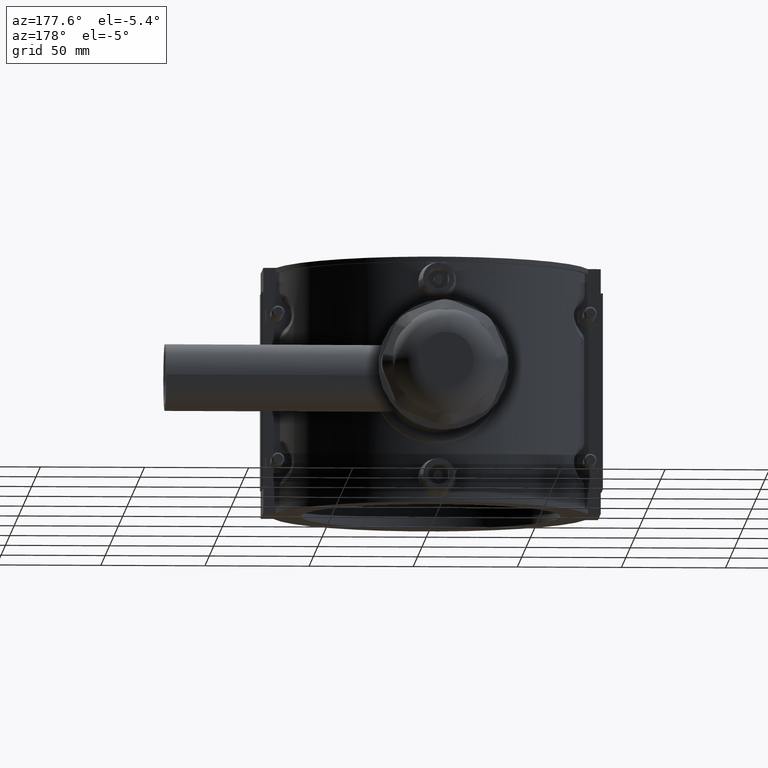
[diagram: clean part render]
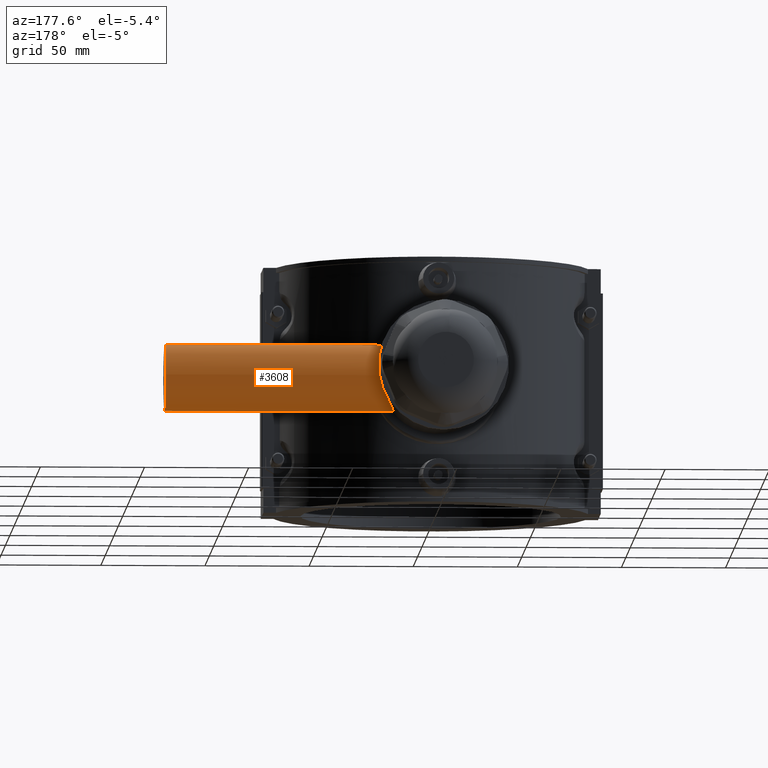
[diagram: same view with one face highlighted and labeled with its STEP entity id]
A machine part, auxiliary view. The second image highlights one B-rep face of the part: STEP entity #3608.
In plain terms, the highlighted cylindrical surface (bore or boss wall) has radius 16 mm, axis along (1, 0, 0).
Its self-contained STEP definition (entity closure, byte-faithful):
#784=CIRCLE('',#3837,16.);
#908=FACE_BOUND('',#1187,.T.);
#959=FACE_OUTER_BOUND('',#1186,.T.);
#1186=EDGE_LOOP('',(#2464));
#1187=EDGE_LOOP('',(#2465,#2466,#2467,#2468,#2469,#2470,#2471,#2472));
#1457=B_SPLINE_CURVE_WITH_KNOTS('',3,(#5241,#5242,#5243,#5244),
 .UNSPECIFIED.,.F.,.F.,(4,4),(1.59478542856925,2.06958599794035),
 .UNSPECIFIED.);
#1458=B_SPLINE_CURVE_WITH_KNOTS('',3,(#5246,#5247,#5248,#5249,#5250,#5251,
#5252,#5253,#5254,#5255),.UNSPECIFIED.,.F.,.F.,(4,2,2,2,4),(-0.207748612553213,
-0.16338054128881,-0.117160539926125,-0.0348976859957164,0.),
 .UNSPECIFIED.);
#1459=B_SPLINE_CURVE_WITH_KNOTS('',3,(#5257,#5258,#5259,#5260),
 .UNSPECIFIED.,.F.,.F.,(4,4),(8.91477351557231,9.20366583408459),
 .UNSPECIFIED.);
#1460=B_SPLINE_CURVE_WITH_KNOTS('',3,(#5262,#5263,#5264,#5265,#5266,#5267,
#5268,#5269,#5270,#5271,#5272,#5273,#5274,#5275,#5276,#5277,#5278,#5279,
#5280,#5281,#5282,#5283,#5284,#5285,#5286,#5287),.UNSPECIFIED.,.F.,.F.,
(4,2,2,2,2,2,2,2,2,2,2,2,4),(1.72278574496395,2.19073809176171,2.55586110705532,
2.92098412234894,3.36973123684705,3.5941047940961,3.81847835134516,4.04285190859421,
4.26722546584327,4.71597258034138,5.08109559563499,5.44621861092861,5.91417095772637),
 .UNSPECIFIED.);
#1461=B_SPLINE_CURVE_WITH_KNOTS('',3,(#5289,#5290,#5291,#5292),
 .UNSPECIFIED.,.F.,.F.,(4,4),(5.57363571386298,5.86252803240021),
 .UNSPECIFIED.);
#1462=B_SPLINE_CURVE_WITH_KNOTS('',3,(#5294,#5295,#5296,#5297,#5298,#5299,
#5300,#5301),.UNSPECIFIED.,.F.,.F.,(4,2,2,4),(-0.207324756175232,-0.137684046769073,
-0.0673685893567476,0.),.UNSPECIFIED.);
#1463=B_SPLINE_CURVE_WITH_KNOTS('',3,(#5303,#5304,#5305,#5306),
 .UNSPECIFIED.,.F.,.F.,(4,4),(1.01258753264947,1.48738810199706),
 .UNSPECIFIED.);
#1464=B_SPLINE_CURVE_WITH_KNOTS('',3,(#5307,#5308,#5309,#5310,#5311,#5312,
#5313,#5314,#5315,#5316,#5317,#5318,#5319,#5320,#5321,#5322,#5323,#5324,
#5325,#5326,#5327,#5328,#5329,#5330,#5331,#5332,#5333,#5334,#5335,#5336,
#5337,#5338,#5339,#5340,#5341,#5342,#5343,#5344,#5345),.UNSPECIFIED.,.F.,
 .F.,(4,2,2,2,2,2,2,2,2,2,2,2,2,2,2,2,3,2,4),(4.62653846409073,4.66368827455382,
4.97569535065282,5.28770242675181,5.59970950285081,6.22372365504879,6.5336784977814,
6.84363334051401,7.15358818324662,7.46354302597923,7.77349786871184,8.08345271144445,
8.39340755417705,8.70336239690966,9.32737654910765,9.63938362520664,9.95139070130564,
10.2633977774046,10.3005475878677),.UNSPECIFIED.);
#1573=VERTEX_POINT('',#5237);
#1574=VERTEX_POINT('',#5239);
#1575=VERTEX_POINT('',#5240);
#1576=VERTEX_POINT('',#5245);
#1577=VERTEX_POINT('',#5256);
#1578=VERTEX_POINT('',#5261);
#1579=VERTEX_POINT('',#5288);
#1580=VERTEX_POINT('',#5293);
#1581=VERTEX_POINT('',#5302);
#1926=EDGE_CURVE('',#1573,#1573,#784,.T.);
#1927=EDGE_CURVE('',#1574,#1575,#1457,.T.);
#1928=EDGE_CURVE('',#1576,#1574,#1458,.T.);
#1929=EDGE_CURVE('',#1577,#1576,#1459,.T.);
#1930=EDGE_CURVE('',#1578,#1577,#1460,.T.);
#1931=EDGE_CURVE('',#1579,#1578,#1461,.T.);
#1932=EDGE_CURVE('',#1580,#1579,#1462,.T.);
#1933=EDGE_CURVE('',#1581,#1580,#1463,.T.);
#1934=EDGE_CURVE('',#1575,#1581,#1464,.T.);
#2464=ORIENTED_EDGE('',*,*,#1926,.F.);
#2465=ORIENTED_EDGE('',*,*,#1927,.F.);
#2466=ORIENTED_EDGE('',*,*,#1928,.F.);
#2467=ORIENTED_EDGE('',*,*,#1929,.F.);
#2468=ORIENTED_EDGE('',*,*,#1930,.F.);
#2469=ORIENTED_EDGE('',*,*,#1931,.F.);
#2470=ORIENTED_EDGE('',*,*,#1932,.F.);
#2471=ORIENTED_EDGE('',*,*,#1933,.F.);
#2472=ORIENTED_EDGE('',*,*,#1934,.F.);
#3552=CYLINDRICAL_SURFACE('',#3836,16.);
#3608=ADVANCED_FACE('',(#959,#908),#3552,.T.);
#3836=AXIS2_PLACEMENT_3D('',#5236,#4169,#4170);
#3837=AXIS2_PLACEMENT_3D('',#5238,#4171,#4172);
#4169=DIRECTION('center_axis',(1.,0.,0.));
#4170=DIRECTION('ref_axis',(0.,1.,0.));
#4171=DIRECTION('center_axis',(1.,0.,0.));
#4172=DIRECTION('ref_axis',(0.,0.,-1.));
#5236=CARTESIAN_POINT('Origin',(65.5,78.5,0.));
#5237=CARTESIAN_POINT('',(131.,94.5,0.));
#5238=CARTESIAN_POINT('Origin',(131.,78.5,0.));
#5239=CARTESIAN_POINT('',(26.2996403395784,73.432478631719,15.1763047931466));
#5240=CARTESIAN_POINT('',(21.4931314237783,74.9802994232565,15.6080654743025));
#5241=CARTESIAN_POINT('Ctrl Pts',(26.2996403396304,73.432478631775,15.1763047934134));
#5242=CARTESIAN_POINT('Ctrl Pts',(24.7211853914037,73.997797931956,15.365070614378));
#5243=CARTESIAN_POINT('Ctrl Pts',(23.1123368360705,74.5161535743244,15.5033981524686));
#5244=CARTESIAN_POINT('Ctrl Pts',(21.4931314237764,74.9802994232503,15.6080654742998));
#5245=CARTESIAN_POINT('',(27.6127388704792,72.0269135708229,14.6321273940303));
#5246=CARTESIAN_POINT('Ctrl Pts',(27.6127388702711,72.026913570963,14.6321273942724));
#5247=CARTESIAN_POINT('Ctrl Pts',(27.5817384677369,72.1591543543104,14.6906292099678));
#5248=CARTESIAN_POINT('Ctrl Pts',(27.532830210742,72.2889087246903,14.7458559697055));
#5249=CARTESIAN_POINT('Ctrl Pts',(27.4036713183901,72.5416956962323,14.8498505173048));
#5250=CARTESIAN_POINT('Ctrl Pts',(27.3219923324532,72.6646457619615,14.8984408937138));
#5251=CARTESIAN_POINT('Ctrl Pts',(27.059422692691,72.9815315069517,15.0197771355465));
#5252=CARTESIAN_POINT('Ctrl Pts',(26.8499765608855,73.1570946653924,15.0822038464803));
#5253=CARTESIAN_POINT('Ctrl Pts',(26.5136900712682,73.3451831095112,15.1469922418417));
#5254=CARTESIAN_POINT('Ctrl Pts',(26.4084666186759,73.3935027991233,15.1632903694486));
#5255=CARTESIAN_POINT('Ctrl Pts',(26.2996403392599,73.4324786319077,15.1763047934577));
#5256=CARTESIAN_POINT('',(28.3298438117732,69.4436458547954,13.1902406952624));
#5257=CARTESIAN_POINT('Ctrl Pts',(28.3298438118253,69.4436458548478,13.1902406952104));
#5258=CARTESIAN_POINT('Ctrl Pts',(28.0727845843043,70.2477716265808,13.7423494803596));
#5259=CARTESIAN_POINT('Ctrl Pts',(27.8262582207816,71.1160877796151,14.2291884428417));
#5260=CARTESIAN_POINT('Ctrl Pts',(27.6127388703266,72.0269135707263,14.6321273941677));
#5261=CARTESIAN_POINT('',(28.3298438117732,69.4436458547954,-13.1902406952624));
#5262=CARTESIAN_POINT('Ctrl Pts',(28.3298438117336,69.4436458547705,-13.1902406951573));
#5263=CARTESIAN_POINT('Ctrl Pts',(29.7783769838141,68.8527103124895,-12.7845072690899));
#5264=CARTESIAN_POINT('Ctrl Pts',(31.1700945183167,68.231613791127,-12.3006172865208));
#5265=CARTESIAN_POINT('Ctrl Pts',(33.5107801035379,67.1068035595477,-11.2538261575908));
#5266=CARTESIAN_POINT('Ctrl Pts',(34.4894558324693,66.6075831040799,-10.7321137099189));
#5267=CARTESIAN_POINT('Ctrl Pts',(36.3323949552606,65.6204980700812,-9.52503410723553));
#5268=CARTESIAN_POINT('Ctrl Pts',(37.1971754250941,65.1322667606988,-8.84075663296203));
#5269=CARTESIAN_POINT('Ctrl Pts',(38.9607958750571,64.0962423850829,-7.0585879655752));
#5270=CARTESIAN_POINT('Ctrl Pts',(39.8724260949086,63.5274809916242,-5.82375575786811));
#5271=CARTESIAN_POINT('Ctrl Pts',(40.8097177758102,62.9261844614866,-3.73890696391043));
#5272=CARTESIAN_POINT('Ctrl Pts',(41.0533821759441,62.7666904400934,-3.00556902905723));
#5273=CARTESIAN_POINT('Ctrl Pts',(41.3774610928119,62.5535237234716,-1.51008921283944));
#5274=CARTESIAN_POINT('Ctrl Pts',(41.4578098794425,62.5,-0.747911857496848));
#5275=CARTESIAN_POINT('Ctrl Pts',(41.4578098794425,62.5,0.74791185749685));
#5276=CARTESIAN_POINT('Ctrl Pts',(41.3774610928119,62.5535237234716,1.51008921283945));
#5277=CARTESIAN_POINT('Ctrl Pts',(41.0533821759441,62.7666904400934,3.00556902905723));
#5278=CARTESIAN_POINT('Ctrl Pts',(40.8097177758102,62.9261844614866,3.73890696391043));
#5279=CARTESIAN_POINT('Ctrl Pts',(39.8724260949086,63.5274809916242,5.82375575786811));
#5280=CARTESIAN_POINT('Ctrl Pts',(38.9607958750571,64.0962423850829,7.0585879655752));
#5281=CARTESIAN_POINT('Ctrl Pts',(37.1971754250941,65.1322667606988,8.84075663296204));
#5282=CARTESIAN_POINT('Ctrl Pts',(36.3323949552606,65.6204980700812,9.52503410723553));
#5283=CARTESIAN_POINT('Ctrl Pts',(34.4894558324693,66.6075831040799,10.7321137099189));
#5284=CARTESIAN_POINT('Ctrl Pts',(33.5107801035378,67.1068035595477,11.2538261575908));
#5285=CARTESIAN_POINT('Ctrl Pts',(31.1700945183167,68.231613791127,12.3006172865208));
#5286=CARTESIAN_POINT('Ctrl Pts',(29.7783769838141,68.8527103124895,12.7845072690899));
#5287=CARTESIAN_POINT('Ctrl Pts',(28.3298438117336,69.4436458547705,13.1902406951573));
#5288=CARTESIAN_POINT('',(27.6127388702718,72.0269135709626,-14.6321273942717));
#5289=CARTESIAN_POINT('Ctrl Pts',(27.6127388702713,72.0269135709623,-14.6321273942721));
#5290=CARTESIAN_POINT('Ctrl Pts',(27.826234871385,71.116187382887,-14.2292325062118));
#5291=CARTESIAN_POINT('Ctrl Pts',(28.0727740917529,70.2478044490984,-13.7423720161381));
#5292=CARTESIAN_POINT('Ctrl Pts',(28.3298438118253,69.4436458548478,-13.1902406952104));
#5293=CARTESIAN_POINT('',(26.2996403393768,73.4324786318384,-15.1763047933435));
#5294=CARTESIAN_POINT('Ctrl Pts',(26.2996403392599,73.4324786319077,-15.1763047934577));
#5295=CARTESIAN_POINT('Ctrl Pts',(26.5170842725205,73.3546016850137,-15.1503008947592));
#5296=CARTESIAN_POINT('Ctrl Pts',(26.7202563257372,73.2394971398576,-15.1112370044218));
#5297=CARTESIAN_POINT('Ctrl Pts',(27.0794733493615,72.9565349753722,-15.0097570044284));
#5298=CARTESIAN_POINT('Ctrl Pts',(27.2360352930143,72.787416527744,-14.9467896018398));
#5299=CARTESIAN_POINT('Ctrl Pts',(27.4774412299008,72.422796575236,-14.802176690148));
#5300=CARTESIAN_POINT('Ctrl Pts',(27.5656662798859,72.2277147128146,-14.7209595313384));
#5301=CARTESIAN_POINT('Ctrl Pts',(27.6127388702712,72.026913570963,-14.6321273942724));
#5302=CARTESIAN_POINT('',(21.4931314237783,74.9802994232565,-15.6080654743025));
#5303=CARTESIAN_POINT('Ctrl Pts',(21.4931314237764,74.9802994232503,-15.6080654742998));
#5304=CARTESIAN_POINT('Ctrl Pts',(23.1123343201915,74.5161542955021,-15.5033983150979));
#5305=CARTESIAN_POINT('Ctrl Pts',(24.7211818740533,73.9977991916797,-15.365071035009));
#5306=CARTESIAN_POINT('Ctrl Pts',(26.2996403393959,73.432478631859,-15.1763047934414));
#5307=CARTESIAN_POINT('Ctrl Pts',(21.4931314237801,74.9802994232627,15.6080654743025));
#5308=CARTESIAN_POINT('Ctrl Pts',(21.4728392829055,75.1042138418839,15.6360088252198));
#5309=CARTESIAN_POINT('Ctrl Pts',(21.4535427884828,75.2284189531039,15.6624667604127));
#5310=CARTESIAN_POINT('Ctrl Pts',(21.2818318061636,76.3979462972384,15.8970923035439));
#5311=CARTESIAN_POINT('Ctrl Pts',(21.2029810698873,77.4599764130033,16.));
#5312=CARTESIAN_POINT('Ctrl Pts',(21.2029810698873,79.5400235869966,16.));
#5313=CARTESIAN_POINT('Ctrl Pts',(21.2818318061636,80.6020537027615,15.897092303544));
#5314=CARTESIAN_POINT('Ctrl Pts',(21.5887141481102,82.6922362029789,15.4777688847146));
#5315=CARTESIAN_POINT('Ctrl Pts',(21.8159991058213,83.7205425385357,15.1615744959676));
#5316=CARTESIAN_POINT('Ctrl Pts',(22.6401072776746,86.6571489716619,13.9273390310399));
#5317=CARTESIAN_POINT('Ctrl Pts',(23.3756461093473,88.4181811838355,12.709235814134));
#5318=CARTESIAN_POINT('Ctrl Pts',(24.3589333048676,90.5068826008421,10.6205343971274));
#5319=CARTESIAN_POINT('Ctrl Pts',(24.691359503658,91.1625817095202,9.83552512078006));
#5320=CARTESIAN_POINT('Ctrl Pts',(25.308689368692,92.3277799761455,8.11609702772261));
#5321=CARTESIAN_POINT('Ctrl Pts',(25.5931925991558,92.8373617177416,7.18159043128894));
#5322=CARTESIAN_POINT('Ctrl Pts',(26.064692482913,93.6630021131036,5.21714070733042));
#5323=CARTESIAN_POINT('Ctrl Pts',(26.251859268868,93.9797291200263,4.18519492884321));
#5324=CARTESIAN_POINT('Ctrl Pts',(26.5008361140821,94.3983085045021,2.09324077073018));
#5325=CARTESIAN_POINT('Ctrl Pts',(26.5625,94.5,1.0331828091087));
#5326=CARTESIAN_POINT('Ctrl Pts',(26.5625,94.5,-1.03318280910869));
#5327=CARTESIAN_POINT('Ctrl Pts',(26.5008361140821,94.3983085045021,-2.09324077073018));
#5328=CARTESIAN_POINT('Ctrl Pts',(26.251859268868,93.9797291200263,-4.18519492884321));
#5329=CARTESIAN_POINT('Ctrl Pts',(26.064692482913,93.6630021131037,-5.21714070733042));
#5330=CARTESIAN_POINT('Ctrl Pts',(25.5931925991558,92.8373617177416,-7.18159043128893));
#5331=CARTESIAN_POINT('Ctrl Pts',(25.308689368692,92.3277799761455,-8.1160970277226));
#5332=CARTESIAN_POINT('Ctrl Pts',(24.691359503658,91.1625817095203,-9.83552512078005));
#5333=CARTESIAN_POINT('Ctrl Pts',(24.3589333048676,90.5068826008421,-10.6205343971274));
#5334=CARTESIAN_POINT('Ctrl Pts',(23.3756461093473,88.4181811838355,-12.709235814134));
#5335=CARTESIAN_POINT('Ctrl Pts',(22.6401072776746,86.6571489716619,-13.9273390310399));
#5336=CARTESIAN_POINT('Ctrl Pts',(21.8159991058213,83.7205425385357,-15.1615744959676));
#5337=CARTESIAN_POINT('Ctrl Pts',(21.5887141481102,82.692236202979,-15.4777688847146));
#5338=CARTESIAN_POINT('Ctrl Pts',(21.2818318061636,80.6020537027616,-15.897092303544));
#5339=CARTESIAN_POINT('Ctrl Pts',(21.2029810698873,79.5400235869967,-16.));
#5340=CARTESIAN_POINT('Ctrl Pts',(21.2029810698873,78.5,-16.));
#5341=CARTESIAN_POINT('Ctrl Pts',(21.2029810698873,77.4599764130034,-16.));
#5342=CARTESIAN_POINT('Ctrl Pts',(21.2818318061636,76.3979462972385,-15.897092303544));
#5343=CARTESIAN_POINT('Ctrl Pts',(21.4535427884828,75.2284189531039,-15.6624667604127));
#5344=CARTESIAN_POINT('Ctrl Pts',(21.4728392829055,75.1042138418839,-15.6360088252198));
#5345=CARTESIAN_POINT('Ctrl Pts',(21.4931314237801,74.9802994232627,-15.6080654743025));